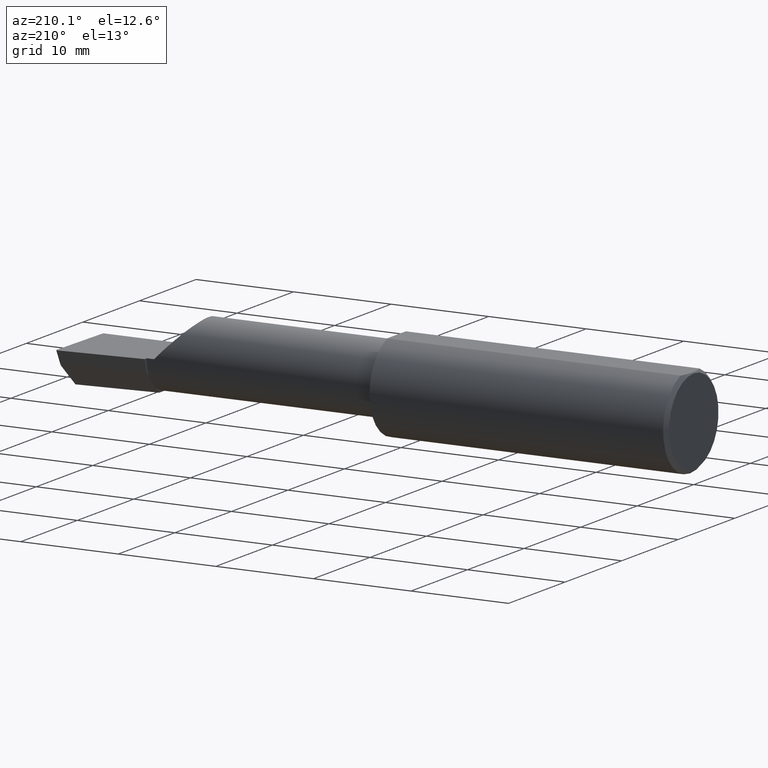
[diagram: clean part render]
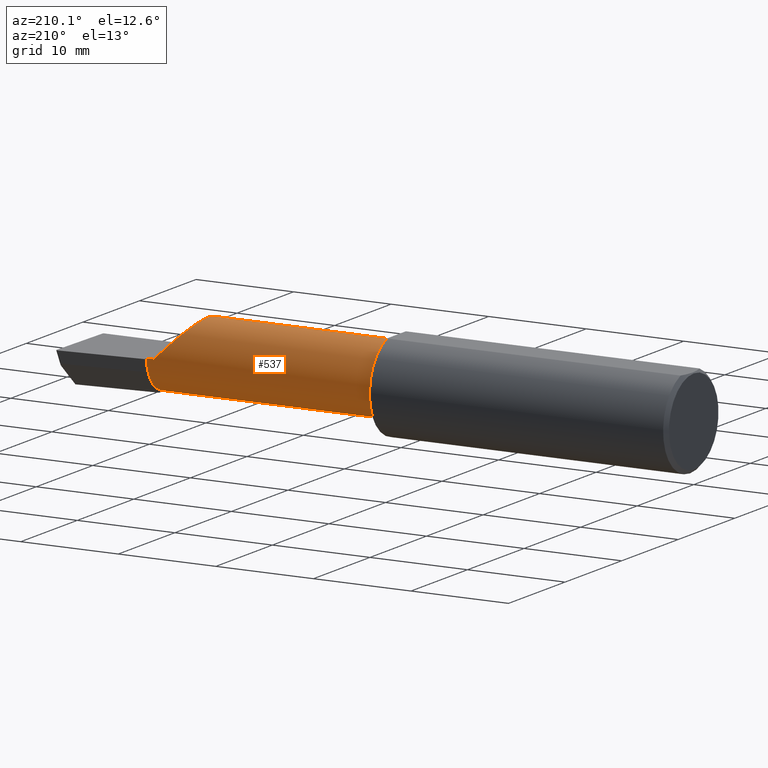
[diagram: same view with one face highlighted and labeled with its STEP entity id]
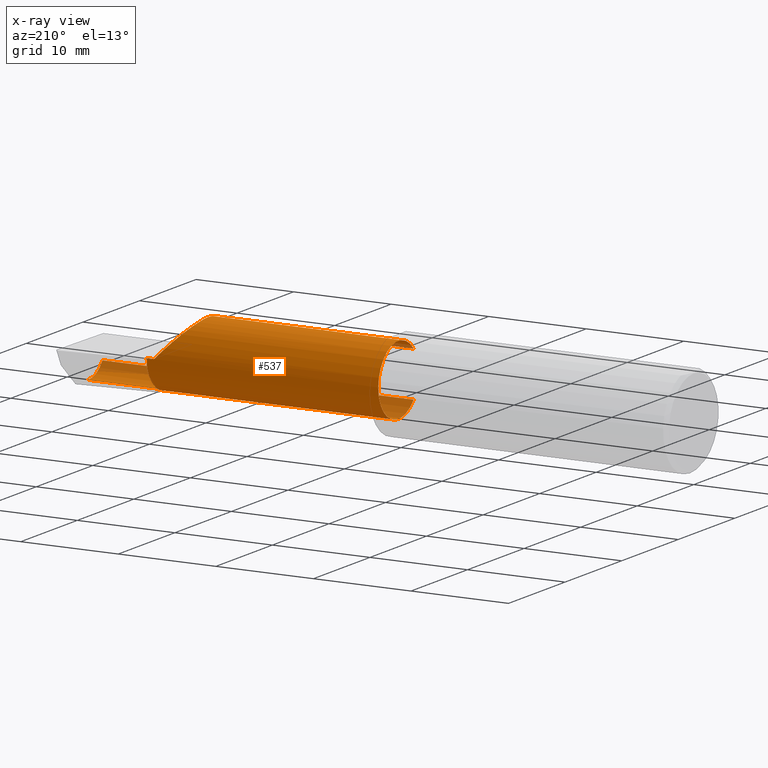
[diagram: x-ray of the same camera — body ghosted, the highlighted face saturated]
A machine part, auxiliary view. The second image highlights one B-rep face of the part: STEP entity #537.
The next image is the same camera in x-ray: the body ghosted, the highlighted face saturated — about 6% of this face is hidden behind the body in this view.
In plain terms, the highlighted cylindrical surface (partial cylindrical patch) has radius 3.5573 mm, axis along (-1, -0, -0).
Its self-contained STEP definition (entity closure, byte-faithful):
#6 = ORIENTED_EDGE ( 'NONE', *, *, #381, .T. ) ;
#17 = EDGE_CURVE ( 'NONE', #471, #261, #286, .T. ) ;
#26 = CARTESIAN_POINT ( 'NONE',  ( 0.000000000000000000, -0.05740000000000001351, 0.000000000000000000 ) ) ;
#33 = VECTOR ( 'NONE', #63, 39.37007874015748143 ) ;
#37 = DIRECTION ( 'NONE',  ( 1.000000000000000000, 6.829619984160658046E-18, 0.000000000000000000 ) ) ;
#63 = DIRECTION ( 'NONE',  ( -1.000000000000000000, -6.829619984160658046E-18, -0.000000000000000000 ) ) ;
#64 = EDGE_CURVE ( 'NONE', #609, #261, #243, .T. ) ;
#65 = VERTEX_POINT ( 'NONE', #361 ) ;
#75 = CARTESIAN_POINT ( 'NONE',  ( 2.129999999999999893, 0.08264999999999983471, 1.065442715258197396E-16 ) ) ;
#77 = CARTESIAN_POINT ( 'NONE',  ( 2.500000000000000000, -0.05739999999999999963, -0.1400500000000000633 ) ) ;
#91 = AXIS2_PLACEMENT_3D ( 'NONE', #583, #101, #320 ) ;
#93 = CARTESIAN_POINT ( 'NONE',  ( 1.225000000000000089, -0.1635956445993032859, -0.09130436773856132060 ) ) ;
#101 = DIRECTION ( 'NONE',  ( -1.000000000000000000, -6.829619984160658046E-18, -0.000000000000000000 ) ) ;
#107 = EDGE_LOOP ( 'NONE', ( #327, #559, #178, #476, #693, #501, #325, #666, #6, #215 ) ) ;
#108 = CIRCLE ( 'NONE', #506, 0.1400499999999999801 ) ;
#124 = CYLINDRICAL_SURFACE ( 'NONE', #253, 0.1400499999999999523 ) ;
#128 = CARTESIAN_POINT ( 'NONE',  ( 2.160000000000000142, 0.08264999999999997349, 3.267291166268305196E-16 ) ) ;
#129 = EDGE_CURVE ( 'NONE', #183, #154, #566, .T. ) ;
#151 =( BOUNDED_CURVE ( )  B_SPLINE_CURVE ( 3, ( #593, #483, #548, #326 ),
 .UNSPECIFIED., .F., .T. ) 
 B_SPLINE_CURVE_WITH_KNOTS ( ( 4, 4 ),
 ( 5.422530673488457964, 7.853981633974482790 ),
 .UNSPECIFIED. ) 
 CURVE ( )  GEOMETRIC_REPRESENTATION_ITEM ( )  RATIONAL_B_SPLINE_CURVE ( ( 1.000000000000000000, 0.5651045289226861446, 0.5651045289226861446, 1.000000000000000000 ) ) 
 REPRESENTATION_ITEM ( '' )  );
#154 = VERTEX_POINT ( 'NONE', #128 ) ;
#159 = CARTESIAN_POINT ( 'NONE',  ( 2.481080296960509024, -0.1635956445993031472, -0.09130436773856158428 ) ) ;
#177 = VERTEX_POINT ( 'NONE', #194 ) ;
#178 = ORIENTED_EDGE ( 'NONE', *, *, #64, .F. ) ;
#181 = DIRECTION ( 'NONE',  ( -1.000000000000000000, -6.829619984160658046E-18, -0.000000000000000000 ) ) ;
#183 = VERTEX_POINT ( 'NONE', #75 ) ;
#185 = CARTESIAN_POINT ( 'NONE',  ( 2.159999999999999698, -0.05739999999999999963, 0.000000000000000000 ) ) ;
#194 = CARTESIAN_POINT ( 'NONE',  ( 2.159999999999999698, -0.05739999999999999963, -0.1400500000000000633 ) ) ;
#215 = ORIENTED_EDGE ( 'NONE', *, *, #611, .F. ) ;
#218 = CARTESIAN_POINT ( 'NONE',  ( 2.477873865042410806, -0.05739999999999999963, -0.1400500000000000633 ) ) ;
#227 = VERTEX_POINT ( 'NONE', #464 ) ;
#243 = CIRCLE ( 'NONE', #652, 0.1400499999999999245 ) ;
#245 = DIRECTION ( 'NONE',  ( 1.000000000000000000, 6.829619984160658046E-18, 0.000000000000000000 ) ) ;
#253 = AXIS2_PLACEMENT_3D ( 'NONE', #26, #360, #670 ) ;
#261 = VERTEX_POINT ( 'NONE', #93 ) ;
#286 = LINE ( 'NONE', #289, #33 ) ;
#288 = EDGE_CURVE ( 'NONE', #471, #451, #461, .T. ) ;
#289 = CARTESIAN_POINT ( 'NONE',  ( 1.692500000000000115, -0.1635956445993031472, -0.09130436773856158428 ) ) ;
#297 = DIRECTION ( 'NONE',  ( 0.000000000000000000, -1.000000000000000000, 0.000000000000000000 ) ) ;
#320 = DIRECTION ( 'NONE',  ( 0.000000000000000000, -1.000000000000000000, 0.000000000000000000 ) ) ;
#322 = EDGE_CURVE ( 'NONE', #609, #227, #632, .T. ) ;
#325 = ORIENTED_EDGE ( 'NONE', *, *, #591, .T. ) ;
#326 = CARTESIAN_POINT ( 'NONE',  ( 2.129999999999999893, 0.08264999999999983471, 1.065442715258197396E-16 ) ) ;
#327 = ORIENTED_EDGE ( 'NONE', *, *, #288, .F. ) ;
#350 = CARTESIAN_POINT ( 'NONE',  ( 1.225000000000000089, -0.1635956445993030917, 0.09130436773856158428 ) ) ;
#351 = CARTESIAN_POINT ( 'NONE',  ( -9.564882787816658464E-19, 0.08264999999999991798, 3.267291166268304703E-16 ) ) ;
#360 = DIRECTION ( 'NONE',  ( -1.000000000000000000, -6.829619984160658046E-18, -0.000000000000000000 ) ) ;
#361 = CARTESIAN_POINT ( 'NONE',  ( 2.159999999999999698, 0.06495571228477929615, -0.06814016562413310885 ) ) ;
#366 = CARTESIAN_POINT ( 'NONE',  ( 2.476787929832031221, -0.09887019258091195306, -0.1400499999999999801 ) ) ;
#381 = EDGE_CURVE ( 'NONE', #555, #177, #481, .T. ) ;
#401 = DIRECTION ( 'NONE',  ( 0.000000000000000000, -1.000000000000000000, 0.000000000000000000 ) ) ;
#404 = DIRECTION ( 'NONE',  ( -1.000000000000000000, 5.691349986800549142E-18, -0.000000000000000000 ) ) ;
#412 = EDGE_CURVE ( 'NONE', #227, #183, #151, .T. ) ;
#417 = CIRCLE ( 'NONE', #427, 0.1400499999999999801 ) ;
#427 = AXIS2_PLACEMENT_3D ( 'NONE', #667, #448, #297 ) ;
#448 = DIRECTION ( 'NONE',  ( -1.000000000000000000, -6.829619984160658046E-18, -0.000000000000000000 ) ) ;
#451 = VERTEX_POINT ( 'NONE', #218 ) ;
#453 = CARTESIAN_POINT ( 'NONE',  ( 2.159999999999999698, 0.01441505128072317204, -0.1202356058309978493 ) ) ;
#461 =( BOUNDED_CURVE ( )  B_SPLINE_CURVE ( 3, ( #159, #572, #366, #580 ),
 .UNSPECIFIED., .F., .F. ) 
 B_SPLINE_CURVE_WITH_KNOTS ( ( 4, 4 ),
 ( 5.632580117768154260, 6.493234751459284304 ),
 .UNSPECIFIED. ) 
 CURVE ( )  GEOMETRIC_REPRESENTATION_ITEM ( )  RATIONAL_B_SPLINE_CURVE ( ( 1.000000000000000000, 0.9392195014330939618, 0.9392195014330939618, 1.000000000000000000 ) ) 
 REPRESENTATION_ITEM ( '' )  );
#464 = CARTESIAN_POINT ( 'NONE',  ( 2.038695632261437130, -0.1635956445993030084, 0.09130436773856177857 ) ) ;
#471 = VERTEX_POINT ( 'NONE', #490 ) ;
#476 = ORIENTED_EDGE ( 'NONE', *, *, #322, .T. ) ;
#481 = CIRCLE ( 'NONE', #91, 0.1400499999999999801 ) ;
#483 = CARTESIAN_POINT ( 'NONE',  ( 1.921229036482944075, -0.06260079402492445266, 0.2087709635170538203 ) ) ;
#490 = CARTESIAN_POINT ( 'NONE',  ( 2.481080296960509024, -0.1635956445993031472, -0.09130436773856158428 ) ) ;
#501 = ORIENTED_EDGE ( 'NONE', *, *, #129, .T. ) ;
#506 = AXIS2_PLACEMENT_3D ( 'NONE', #185, #245, #401 ) ;
#525 = DIRECTION ( 'NONE',  ( 1.000000000000000000, 6.829619984160658046E-18, 0.000000000000000000 ) ) ;
#537 = ADVANCED_FACE ( 'NONE', ( #612 ), #124, .T. ) ;
#548 = CARTESIAN_POINT ( 'NONE',  ( 1.975085956200449022, 0.08264999999999993185, 0.1549140437995494002 ) ) ;
#555 = VERTEX_POINT ( 'NONE', #453 ) ;
#559 = ORIENTED_EDGE ( 'NONE', *, *, #17, .T. ) ;
#560 = LINE ( 'NONE', #77, #570 ) ;
#564 = VECTOR ( 'NONE', #37, 39.37007874015748143 ) ;
#566 = LINE ( 'NONE', #351, #564 ) ;
#570 = VECTOR ( 'NONE', #404, 39.37007874015748143 ) ;
#572 = CARTESIAN_POINT ( 'NONE',  ( 2.477925907309857401, -0.1365595166907237479, -0.1227499502647106805 ) ) ;
#580 = CARTESIAN_POINT ( 'NONE',  ( 2.477873865042410806, -0.05739999999999999963, -0.1400500000000000633 ) ) ;
#583 = CARTESIAN_POINT ( 'NONE',  ( 2.160000000000000142, -0.05739999999999999963, 0.000000000000000000 ) ) ;
#591 = EDGE_CURVE ( 'NONE', #154, #65, #417, .T. ) ;
#593 = CARTESIAN_POINT ( 'NONE',  ( 2.038695632261437130, -0.1635956445993030084, 0.09130436773856177857 ) ) ;
#607 = EDGE_CURVE ( 'NONE', #555, #65, #108, .T. ) ;
#609 = VERTEX_POINT ( 'NONE', #350 ) ;
#611 = EDGE_CURVE ( 'NONE', #451, #177, #560, .T. ) ;
#612 = FACE_OUTER_BOUND ( 'NONE', #107, .T. ) ;
#616 = CARTESIAN_POINT ( 'NONE',  ( 1.225000000000000089, -0.05740000000000000657, 0.000000000000000000 ) ) ;
#632 = LINE ( 'NONE', #639, #638 ) ;
#638 = VECTOR ( 'NONE', #525, 39.37007874015748143 ) ;
#639 = CARTESIAN_POINT ( 'NONE',  ( 1.692500000000000115, -0.1635956445993031472, 0.09130436773856158428 ) ) ;
#652 = AXIS2_PLACEMENT_3D ( 'NONE', #616, #181, #660 ) ;
#660 = DIRECTION ( 'NONE',  ( 0.000000000000000000, -1.000000000000000000, 0.000000000000000000 ) ) ;
#666 = ORIENTED_EDGE ( 'NONE', *, *, #607, .F. ) ;
#667 = CARTESIAN_POINT ( 'NONE',  ( 2.160000000000000142, -0.05739999999999999963, 0.000000000000000000 ) ) ;
#670 = DIRECTION ( 'NONE',  ( 6.829619984160657276E-18, -1.000000000000000000, 0.000000000000000000 ) ) ;
#693 = ORIENTED_EDGE ( 'NONE', *, *, #412, .T. ) ;